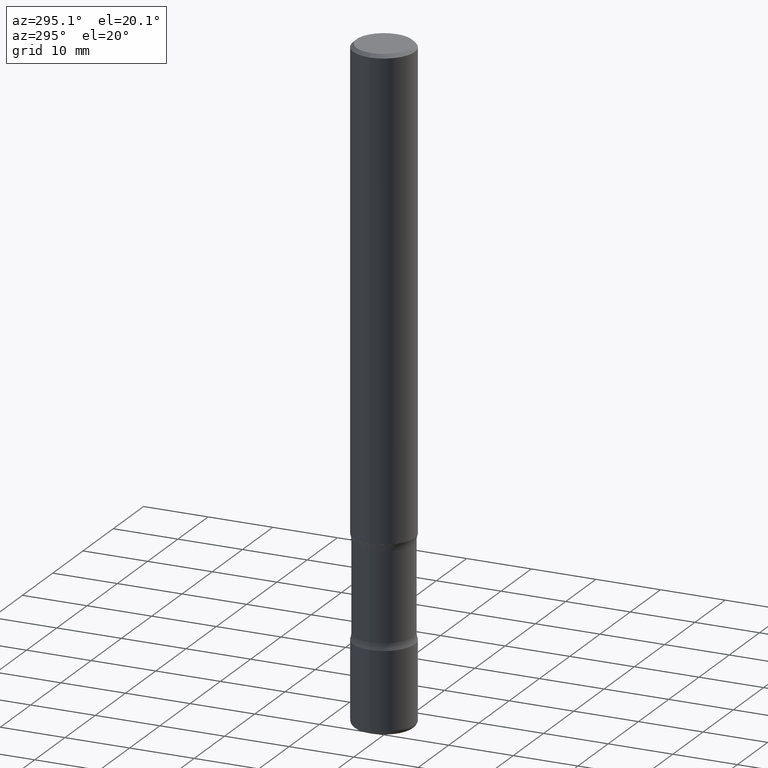
[diagram: clean part render]
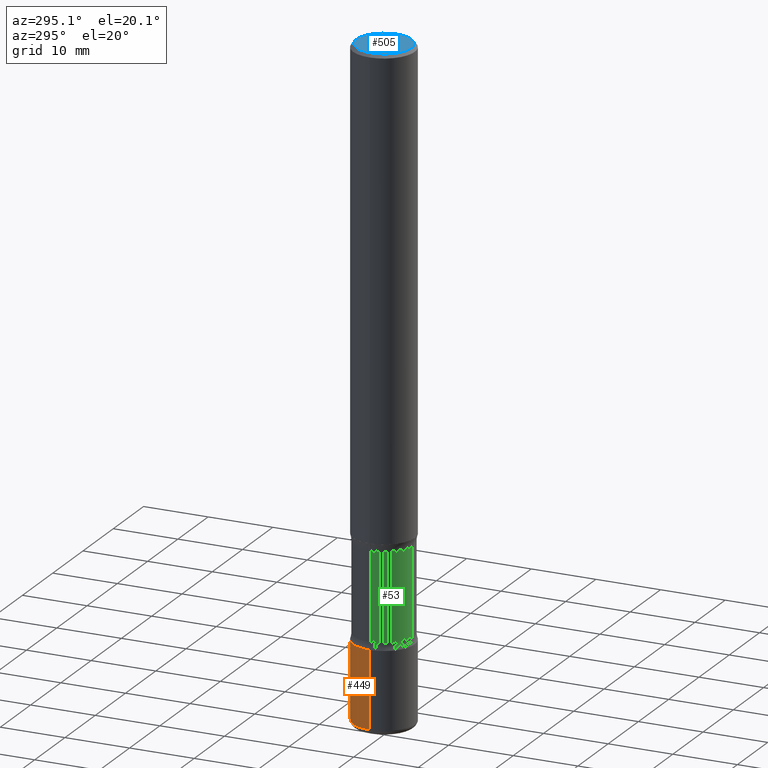
[diagram: same view with three faces highlighted in distinct colors, each labeled with its STEP entity id]
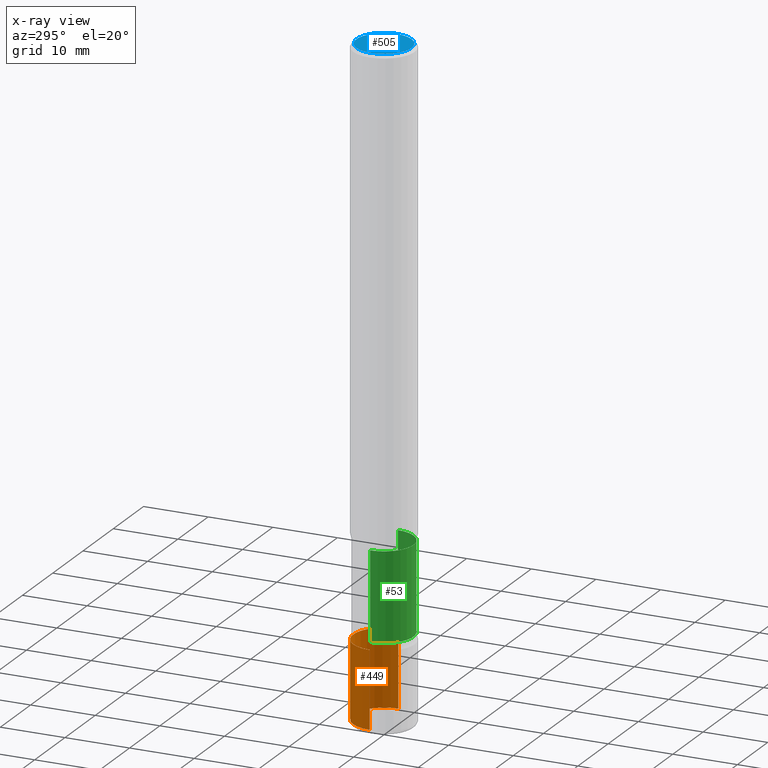
[diagram: x-ray of the same camera — body ghosted, the three highlighted faces saturated]
A machine part, auxiliary view with three faces highlighted in distinct colors.
The next image is the same camera in x-ray (body ghosted, the three faces saturated) — at least one of them is partly hidden behind the body in this view.
Their STEP definitions:

[orange] entity #449 — the highlighted cylindrical surface (edge-blend (fillet) strip) has radius 4.7625 mm, axis along (-0, 0, 1).
#3 = DIRECTION ( 'NONE',  ( -2.445468806185136597E-29, 3.491481338843145583E-15, 1.000000000000000000 ) ) ;
#15 = CARTESIAN_POINT ( 'NONE',  ( -0.1875000000000000278, -1.170841517102895815E-14, -3.500000000000000000 ) ) ;
#26 = AXIS2_PLACEMENT_3D ( 'NONE', #250, #311, #744 ) ;
#49 = CARTESIAN_POINT ( 'NONE',  ( 0.1875000000000000278, -1.309305502066175008E-15, 9.142831454617381013E-30 ) ) ;
#107 = DIRECTION ( 'NONE',  ( -2.445468806185136877E-29, 3.491481338843145188E-15, 1.000000000000000000 ) ) ;
#109 = CARTESIAN_POINT ( 'NONE',  ( 0.1874999999999998335, -1.517048641727346397E-14, -3.970000000000000195 ) ) ;
#113 = FACE_OUTER_BOUND ( 'NONE', #790, .T. ) ;
#149 = CARTESIAN_POINT ( 'NONE',  ( -0.1874999999999998335, -1.252891328565710111E-14, -3.970000000000000195 ) ) ;
#152 = DIRECTION ( 'NONE',  ( -2.445468806185136877E-29, 3.491481338843145188E-15, 1.000000000000000000 ) ) ;
#185 = CARTESIAN_POINT ( 'NONE',  ( 9.708511160554992872E-29, -1.386118091520728738E-14, -3.970000000000000195 ) ) ;
#198 = VECTOR ( 'NONE', #152, 39.37007874015748143 ) ;
#250 = CARTESIAN_POINT ( 'NONE',  ( 8.559140821647976968E-29, -1.222018468595100934E-14, -3.500000000000000000 ) ) ;
#302 = LINE ( 'NONE', #49, #332 ) ;
#311 = DIRECTION ( 'NONE',  ( -2.445468806185136597E-29, 3.491481338843145583E-15, 1.000000000000000000 ) ) ;
#332 = VECTOR ( 'NONE', #107, 39.37007874015748143 ) ;
#343 = LINE ( 'NONE', #468, #198 ) ;
#352 = ORIENTED_EDGE ( 'NONE', *, *, #467, .F. ) ;
#353 = EDGE_CURVE ( 'NONE', #393, #459, #302, .T. ) ;
#380 = DIRECTION ( 'NONE',  ( 1.000000000000000000, -6.982962677686265922E-15, 4.876176775795935793E-29 ) ) ;
#386 = AXIS2_PLACEMENT_3D ( 'NONE', #439, #3, #380 ) ;
#393 = VERTEX_POINT ( 'NONE', #109 ) ;
#416 = CIRCLE ( 'NONE', #788, 0.1875000000000000278 ) ;
#429 = CYLINDRICAL_SURFACE ( 'NONE', #386, 0.1875000000000000278 ) ;
#439 = CARTESIAN_POINT ( 'NONE',  ( 0.000000000000000000, 0.000000000000000000, 0.000000000000000000 ) ) ;
#443 = DIRECTION ( 'NONE',  ( 1.000000000000000000, -6.982962677686261189E-15, 0.000000000000000000 ) ) ;
#449 = ADVANCED_FACE ( 'NONE', ( #113 ), #429, .T. ) ;
#450 = CARTESIAN_POINT ( 'NONE',  ( 0.1875000000000000278, -1.352949018801718277E-14, -3.500000000000000000 ) ) ;
#459 = VERTEX_POINT ( 'NONE', #450 ) ;
#467 = EDGE_CURVE ( 'NONE', #459, #670, #737, .T. ) ;
#468 = CARTESIAN_POINT ( 'NONE',  ( -0.1875000000000000278, 1.332267629550188046E-15, -9.223003294227947991E-30 ) ) ;
#511 = EDGE_CURVE ( 'NONE', #393, #620, #416, .T. ) ;
#615 = EDGE_CURVE ( 'NONE', #620, #670, #343, .T. ) ;
#620 = VERTEX_POINT ( 'NONE', #149 ) ;
#623 = ORIENTED_EDGE ( 'NONE', *, *, #615, .T. ) ;
#670 = VERTEX_POINT ( 'NONE', #15 ) ;
#702 = DIRECTION ( 'NONE',  ( -2.445468806185136597E-29, 3.491481338843145583E-15, 1.000000000000000000 ) ) ;
#716 = ORIENTED_EDGE ( 'NONE', *, *, #511, .T. ) ;
#737 = CIRCLE ( 'NONE', #26, 0.1875000000000000278 ) ;
#744 = DIRECTION ( 'NONE',  ( 1.000000000000000000, -6.982962677686261189E-15, 0.000000000000000000 ) ) ;
#788 = AXIS2_PLACEMENT_3D ( 'NONE', #185, #702, #443 ) ;
#790 = EDGE_LOOP ( 'NONE', ( #716, #623, #352, #795 ) ) ;
#795 = ORIENTED_EDGE ( 'NONE', *, *, #353, .F. ) ;

[blue] entity #505 — the highlighted planar face has unit normal (0, -0, -1).
#7 = CARTESIAN_POINT ( 'NONE',  ( 1.169646248512448215E-15, 0.1674999999999997879, -5.848231242562260795E-16 ) ) ;
#9 = PLANE ( 'NONE',  #560 ) ;
#10 = DIRECTION ( 'NONE',  ( 1.000000000000000000, -6.982962677686266711E-15, 4.876176775795935793E-29 ) ) ;
#104 = AXIS2_PLACEMENT_3D ( 'NONE', #132, #390, #10 ) ;
#132 = CARTESIAN_POINT ( 'NONE',  ( 0.000000000000000000, 0.000000000000000000, 0.000000000000000000 ) ) ;
#148 = ORIENTED_EDGE ( 'NONE', *, *, #171, .T. ) ;
#171 = EDGE_CURVE ( 'NONE', #335, #473, #358, .T. ) ;
#299 = CARTESIAN_POINT ( 'NONE',  ( -0.1674999999999997879, 1.204561061900879272E-15, -8.301862719484101980E-30 ) ) ;
#300 = EDGE_LOOP ( 'NONE', ( #148, #489 ) ) ;
#335 = VERTEX_POINT ( 'NONE', #299 ) ;
#358 = CIRCLE ( 'NONE', #104, 0.1674999999999997879 ) ;
#390 = DIRECTION ( 'NONE',  ( -2.445468806185136597E-29, 3.491481338843145583E-15, 1.000000000000000000 ) ) ;
#445 = DIRECTION ( 'NONE',  ( -1.000000000000000000, 6.982962677686265922E-15, -4.876176775795935793E-29 ) ) ;
#473 = VERTEX_POINT ( 'NONE', #566 ) ;
#489 = ORIENTED_EDGE ( 'NONE', *, *, #629, .T. ) ;
#505 = ADVANCED_FACE ( 'NONE', ( #574 ), #9, .F. ) ;
#535 = DIRECTION ( 'NONE',  ( 1.000000000000000000, -6.982962677686266711E-15, 4.876176775795935793E-29 ) ) ;
#560 = AXIS2_PLACEMENT_3D ( 'NONE', #7, #643, #445 ) ;
#566 = CARTESIAN_POINT ( 'NONE',  ( 0.1674999999999997879, -1.252653207992876908E-15, 8.469775550109228175E-30 ) ) ;
#574 = FACE_OUTER_BOUND ( 'NONE', #300, .T. ) ;
#582 = CARTESIAN_POINT ( 'NONE',  ( 0.000000000000000000, 0.000000000000000000, 0.000000000000000000 ) ) ;
#629 = EDGE_CURVE ( 'NONE', #473, #335, #664, .T. ) ;
#643 = DIRECTION ( 'NONE',  ( 2.438088387897960049E-29, -3.491481338843145188E-15, -1.000000000000000000 ) ) ;
#664 = CIRCLE ( 'NONE', #753, 0.1674999999999997879 ) ;
#710 = DIRECTION ( 'NONE',  ( -2.445468806185136597E-29, 3.491481338843145583E-15, 1.000000000000000000 ) ) ;
#753 = AXIS2_PLACEMENT_3D ( 'NONE', #582, #710, #535 ) ;

[green] entity #53 — the highlighted cylindrical surface (edge-blend (fillet) strip) has radius 4.572 mm, axis along (-0, 0, 1).
#2 = CIRCLE ( 'NONE', #715, 0.1799999999999999933 ) ;
#18 = ORIENTED_EDGE ( 'NONE', *, *, #454, .F. ) ;
#53 = ADVANCED_FACE ( 'NONE', ( #757 ), #451, .T. ) ;
#60 = CARTESIAN_POINT ( 'NONE',  ( -0.1799999999999999656, -8.759031924805863213E-15, -2.875000000000000000 ) ) ;
#61 = CARTESIAN_POINT ( 'NONE',  ( 7.135014249761037125E-29, -1.018690937394627965E-14, -2.917646805273079735 ) ) ;
#64 = CARTESIAN_POINT ( 'NONE',  ( 7.030722817782267716E-29, -1.003800884917404311E-14, -2.875000000000000000 ) ) ;
#65 = ORIENTED_EDGE ( 'NONE', *, *, #106, .F. ) ;
#103 = ORIENTED_EDGE ( 'NONE', *, *, #254, .T. ) ;
#106 = EDGE_CURVE ( 'NONE', #731, #273, #649, .T. ) ;
#129 = VECTOR ( 'NONE', #530, 39.37007874015748143 ) ;
#130 = DIRECTION ( 'NONE',  ( -2.445468806185136877E-29, 3.491481338843145188E-15, 1.000000000000000000 ) ) ;
#138 = DIRECTION ( 'NONE',  ( 1.000000000000000000, -6.982962677686269077E-15, 0.000000000000000000 ) ) ;
#220 = VERTEX_POINT ( 'NONE', #596 ) ;
#234 = EDGE_CURVE ( 'NONE', #676, #273, #593, .T. ) ;
#254 = EDGE_CURVE ( 'NONE', #220, #676, #2, .T. ) ;
#273 = VERTEX_POINT ( 'NONE', #472 ) ;
#338 = CARTESIAN_POINT ( 'NONE',  ( 8.454849389669208679E-29, -1.207128416117877279E-14, -3.457353194726919821 ) ) ;
#345 = VECTOR ( 'NONE', #130, 39.37007874015748143 ) ;
#377 = LINE ( 'NONE', #60, #345 ) ;
#440 = DIRECTION ( 'NONE',  ( 1.000000000000000000, -6.982962677686270655E-15, 0.000000000000000000 ) ) ;
#451 = CYLINDRICAL_SURFACE ( 'NONE', #585, 0.1799999999999999656 ) ;
#454 = EDGE_CURVE ( 'NONE', #220, #731, #377, .T. ) ;
#472 = CARTESIAN_POINT ( 'NONE',  ( 0.1799999999999999378, -1.144384265592980798E-14, -2.917646805273079735 ) ) ;
#514 = DIRECTION ( 'NONE',  ( -2.445468806185136597E-29, 3.491481338843145583E-15, 1.000000000000000000 ) ) ;
#530 = DIRECTION ( 'NONE',  ( -2.445468806185136877E-29, 3.491481338843145188E-15, 1.000000000000000000 ) ) ;
#536 = CARTESIAN_POINT ( 'NONE',  ( 0.1799999999999999656, -1.129494213115757143E-14, -2.875000000000000000 ) ) ;
#585 = AXIS2_PLACEMENT_3D ( 'NONE', #64, #514, #759 ) ;
#588 = CARTESIAN_POINT ( 'NONE',  ( 0.1799999999999999933, -1.332821744316230112E-14, -3.457353194726919821 ) ) ;
#591 = CARTESIAN_POINT ( 'NONE',  ( -0.1799999999999999378, -8.806836834600976720E-15, -2.917646805273079735 ) ) ;
#593 = LINE ( 'NONE', #536, #129 ) ;
#596 = CARTESIAN_POINT ( 'NONE',  ( -0.1799999999999999933, -1.084011214660570641E-14, -3.457353194726919821 ) ) ;
#598 = EDGE_LOOP ( 'NONE', ( #18, #103, #802, #65 ) ) ;
#649 = CIRCLE ( 'NONE', #748, 0.1799999999999999378 ) ;
#676 = VERTEX_POINT ( 'NONE', #588 ) ;
#709 = DIRECTION ( 'NONE',  ( -2.445468806185136597E-29, 3.491481338843145583E-15, 1.000000000000000000 ) ) ;
#711 = DIRECTION ( 'NONE',  ( -2.445468806185136597E-29, 3.491481338843145583E-15, 1.000000000000000000 ) ) ;
#715 = AXIS2_PLACEMENT_3D ( 'NONE', #338, #711, #138 ) ;
#731 = VERTEX_POINT ( 'NONE', #591 ) ;
#748 = AXIS2_PLACEMENT_3D ( 'NONE', #61, #709, #440 ) ;
#757 = FACE_OUTER_BOUND ( 'NONE', #598, .T. ) ;
#759 = DIRECTION ( 'NONE',  ( 1.000000000000000000, -6.982962677686269866E-15, 0.000000000000000000 ) ) ;
#802 = ORIENTED_EDGE ( 'NONE', *, *, #234, .T. ) ;